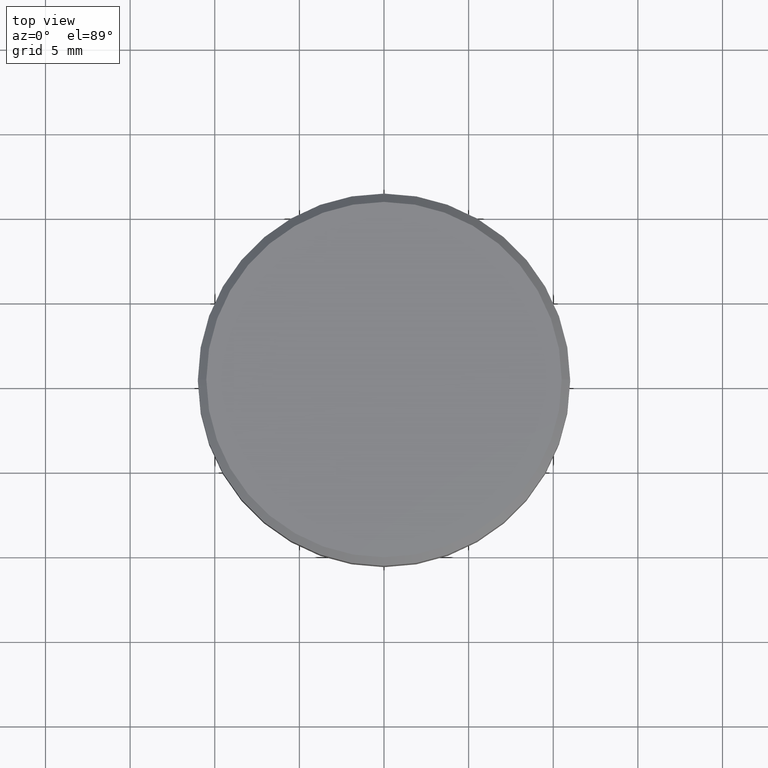
[diagram: clean part render]
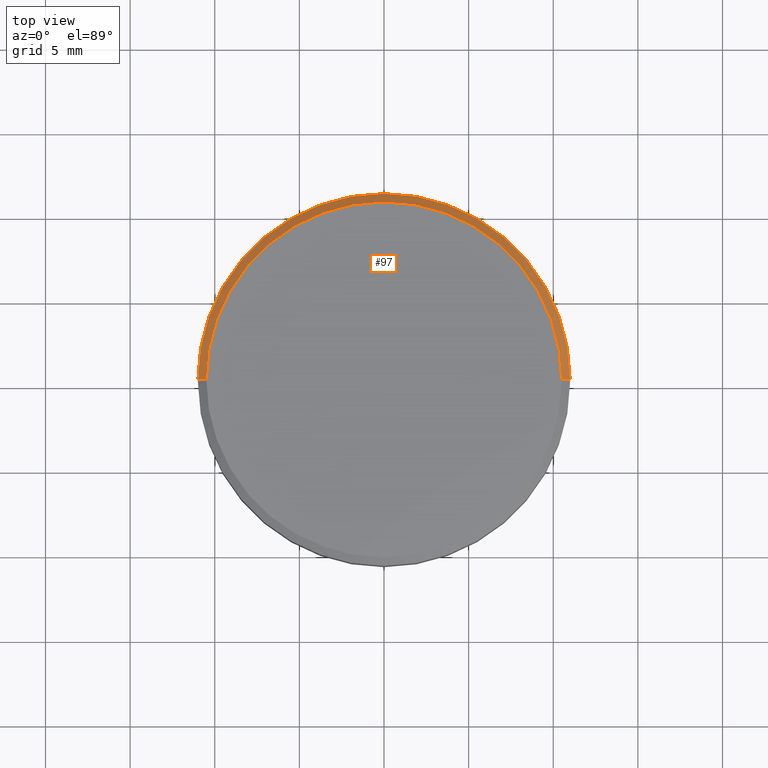
[diagram: same view with one face highlighted and labeled with its STEP entity id]
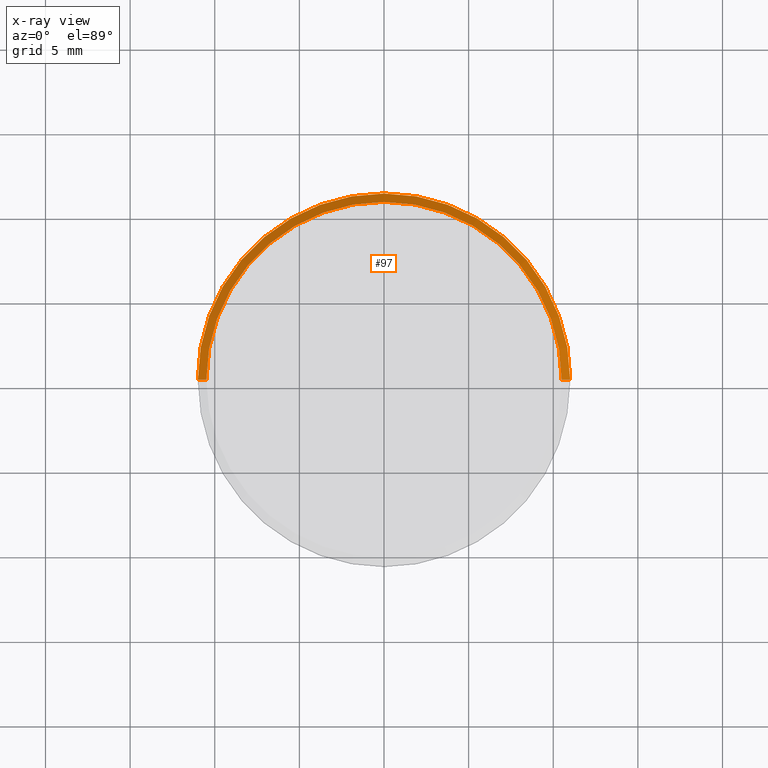
[diagram: x-ray of the same camera — body ghosted, the highlighted face saturated]
A machine part, top view. The second image highlights one B-rep face of the part: STEP entity #97.
The next image is the same camera in x-ray: the body ghosted, the highlighted face saturated — about 0% of this face is hidden behind the body in this view.
In plain terms, the highlighted conical surface has half-angle 45 deg.
Its self-contained STEP definition (entity closure, byte-faithful):
#9 = DIRECTION ( 'NONE',  ( 0.7071067811865474617, 8.659560562354932858E-17, -0.7071067811865474617 ) ) ;
#20 = DIRECTION ( 'NONE',  ( -0.7071067811865474617, 0.000000000000000000, -0.7071067811865474617 ) ) ;
#47 = VECTOR ( 'NONE', #9, 1000.000000000000114 ) ;
#54 = CARTESIAN_POINT ( 'NONE',  ( -10.49999999999999822, 0.000000000000000000, 0.000000000000000000 ) ) ;
#63 = EDGE_LOOP ( 'NONE', ( #343, #237, #301, #126 ) ) ;
#70 = VERTEX_POINT ( 'NONE', #253 ) ;
#74 = CARTESIAN_POINT ( 'NONE',  ( -10.49999999999999822, 0.000000000000000000, 0.000000000000000000 ) ) ;
#76 = CARTESIAN_POINT ( 'NONE',  ( -11.00000000000000000, 1.347111479062088405E-15, -0.5000000000000004441 ) ) ;
#84 = VERTEX_POINT ( 'NONE', #260 ) ;
#97 = ADVANCED_FACE ( 'NONE', ( #212 ), #161, .T. ) ;
#102 = CIRCLE ( 'NONE', #341, 11.00000000000000000 ) ;
#103 = EDGE_CURVE ( 'NONE', #84, #175, #197, .T. ) ;
#113 = DIRECTION ( 'NONE',  ( -1.000000000000000000, 0.000000000000000000, 0.000000000000000000 ) ) ;
#126 = ORIENTED_EDGE ( 'NONE', *, *, #229, .F. ) ;
#130 = LINE ( 'NONE', #258, #47 ) ;
#161 = CONICAL_SURFACE ( 'NONE', #264, 10.49999999999999822, 0.7853981633974482790 ) ;
#175 = VERTEX_POINT ( 'NONE', #74 ) ;
#188 = VERTEX_POINT ( 'NONE', #76 ) ;
#197 = CIRCLE ( 'NONE', #234, 10.49999999999999822 ) ;
#212 = FACE_OUTER_BOUND ( 'NONE', #63, .T. ) ;
#227 = CARTESIAN_POINT ( 'NONE',  ( 0.000000000000000000, 0.000000000000000000, -0.5000000000000004441 ) ) ;
#229 = EDGE_CURVE ( 'NONE', #175, #188, #400, .T. ) ;
#234 = AXIS2_PLACEMENT_3D ( 'NONE', #244, #371, #366 ) ;
#237 = ORIENTED_EDGE ( 'NONE', *, *, #359, .T. ) ;
#244 = CARTESIAN_POINT ( 'NONE',  ( 0.000000000000000000, 0.000000000000000000, 0.000000000000000000 ) ) ;
#253 = CARTESIAN_POINT ( 'NONE',  ( 11.00000000000000000, 0.000000000000000000, -0.5000000000000004441 ) ) ;
#258 = CARTESIAN_POINT ( 'NONE',  ( 10.49999999999999822, 1.285879139104720633E-15, 0.000000000000000000 ) ) ;
#260 = CARTESIAN_POINT ( 'NONE',  ( 10.49999999999999822, 1.316495309083404420E-15, 0.000000000000000000 ) ) ;
#264 = AXIS2_PLACEMENT_3D ( 'NONE', #307, #347, #113 ) ;
#301 = ORIENTED_EDGE ( 'NONE', *, *, #318, .F. ) ;
#307 = CARTESIAN_POINT ( 'NONE',  ( 0.000000000000000000, 0.000000000000000000, 0.000000000000000000 ) ) ;
#318 = EDGE_CURVE ( 'NONE', #188, #70, #102, .T. ) ;
#341 = AXIS2_PLACEMENT_3D ( 'NONE', #227, #354, #387 ) ;
#343 = ORIENTED_EDGE ( 'NONE', *, *, #103, .F. ) ;
#347 = DIRECTION ( 'NONE',  ( 0.000000000000000000, 0.000000000000000000, -1.000000000000000000 ) ) ;
#354 = DIRECTION ( 'NONE',  ( 0.000000000000000000, 0.000000000000000000, -1.000000000000000000 ) ) ;
#359 = EDGE_CURVE ( 'NONE', #84, #70, #130, .T. ) ;
#366 = DIRECTION ( 'NONE',  ( 1.000000000000000000, 0.000000000000000000, 0.000000000000000000 ) ) ;
#371 = DIRECTION ( 'NONE',  ( -0.000000000000000000, -0.000000000000000000, 1.000000000000000000 ) ) ;
#387 = DIRECTION ( 'NONE',  ( 1.000000000000000000, 0.000000000000000000, 0.000000000000000000 ) ) ;
#398 = VECTOR ( 'NONE', #20, 1000.000000000000114 ) ;
#400 = LINE ( 'NONE', #54, #398 ) ;